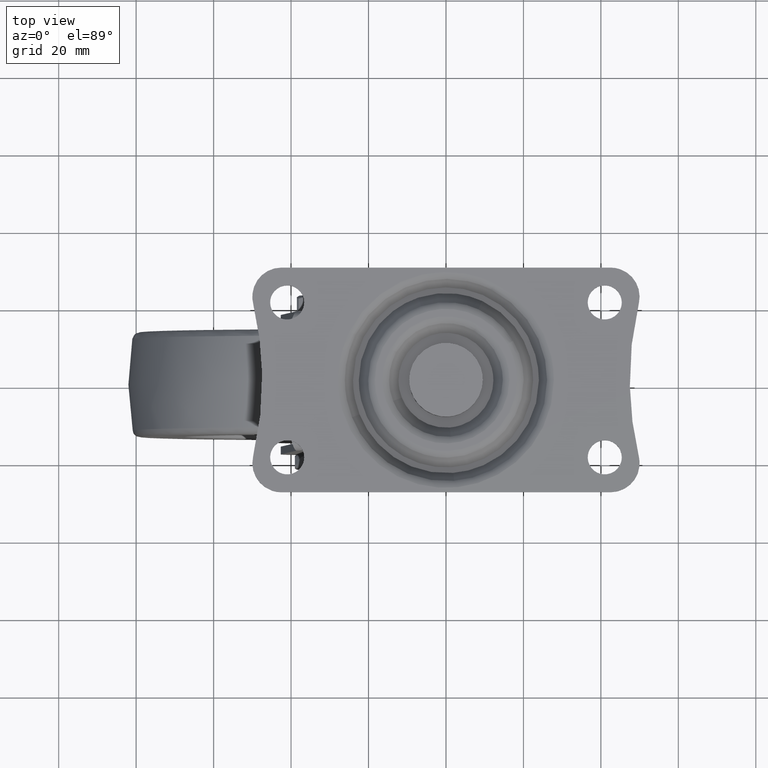
[diagram: clean part render]
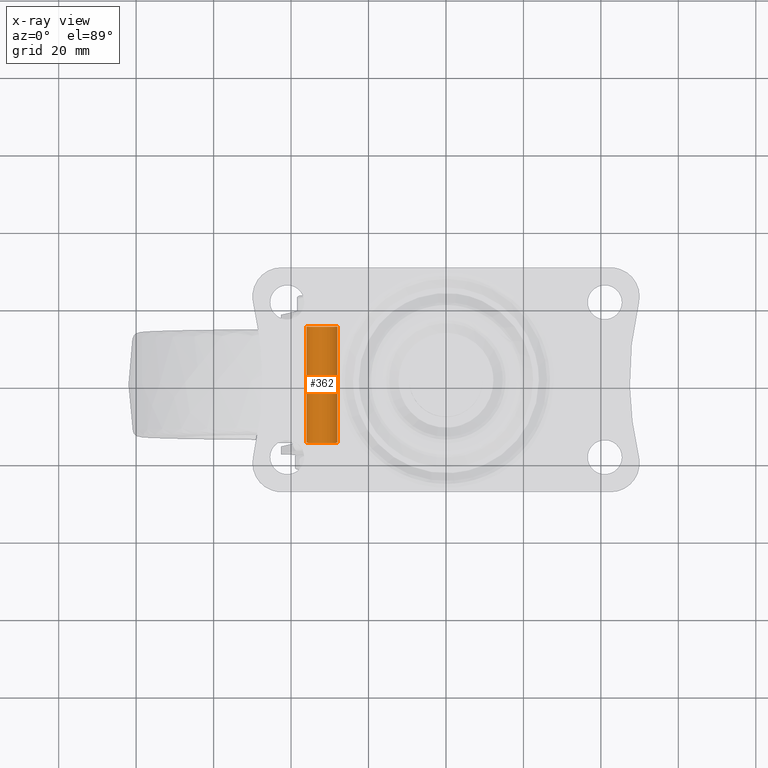
[diagram: x-ray — body ghosted, one internal face saturated and labeled with its STEP entity id]
A machine part, top view, then the same camera in x-ray: the body is ghosted and one INTERNAL B-rep face — a face not visible from any outside direction — is saturated and labeled: STEP entity #362.
In plain terms, the highlighted face is a freeform B-spline surface patch.
Its self-contained STEP definition (entity closure, byte-faithful):
#260=CARTESIAN_POINT('',(-28.027961894545228,-15.750000000000005,-69.527863061372955));
#261=CARTESIAN_POINT('',(-28.014449538205461,-15.750000000000007,-69.641541085448068));
#262=CARTESIAN_POINT('',(-28.007460806312420,-15.750000000000000,-69.755805841860564));
#263=CARTESIAN_POINT('',(-27.763266648172987,-15.750000000000009,-73.748345035548141));
#264=CARTESIAN_POINT('',(-31.755805841860560,-15.750000000000000,-73.992539193687577));
#265=CARTESIAN_POINT('',(-35.748345035548148,-15.750000000000009,-74.236733351827013));
#266=CARTESIAN_POINT('',(-35.992539193687577,-15.750000000000000,-70.244194158139436));
#267=CARTESIAN_POINT('',(-28.027961894545228,15.768749999999862,-69.527863061372955));
#268=CARTESIAN_POINT('',(-28.014449538205461,15.768749999999864,-69.641541085448068));
#269=CARTESIAN_POINT('',(-28.007460806312420,15.768749999999860,-69.755805841860564));
#270=CARTESIAN_POINT('',(-27.763266648172987,15.768749999999855,-73.748345035548141));
#271=CARTESIAN_POINT('',(-31.755805841860560,15.768749999999860,-73.992539193687577));
#272=CARTESIAN_POINT('',(-35.748345035548148,15.768749999999855,-74.236733351827013));
#273=CARTESIAN_POINT('',(-35.992539193687577,15.768749999999860,-70.244194158139436));
#281=(BOUNDED_SURFACE()B_SPLINE_SURFACE(2,1,((#260,#267),(#261,#268),(#262,#269),(#263,#270),(#264,#271),(#265,#272),(#266,#273)),.UNSPECIFIED.,.F.,.F.,.U.)B_SPLINE_SURFACE_WITH_KNOTS((3,2,2,3),(2,2),(0.0,0.265096679918789,6.892513677888497,13.519930675858211),(0.0,31.518749999999869),.UNSPECIFIED.)GEOMETRIC_REPRESENTATION_ITEM()RATIONAL_B_SPLINE_SURFACE(((0.977505800795127,0.977505800795127),(0.988284271247462,0.988284271247462),(1.0,1.0),(0.707106781186548,0.707106781186548),(1.0,1.0),(0.707106781186548,0.707106781186548),(1.0,1.0)))REPRESENTATION_ITEM('')SURFACE());
#282=CARTESIAN_POINT('',(-28.027961894596562,-15.0,-69.527863060941030));
#283=VERTEX_POINT('',#282);
#284=CARTESIAN_POINT('',(-32.0,-15.0,-74.000000000000128));
#285=VERTEX_POINT('',#284);
#286=CARTESIAN_POINT('',(-28.027961894596569,-15.000000000000002,-69.527863060941030));
#287=CARTESIAN_POINT('',(-27.999999999999890,-14.999999999999998,-69.763103520955866));
#288=CARTESIAN_POINT('',(-27.999999999999890,-15.0,-70.0));
#289=CARTESIAN_POINT('',(-27.999999999999883,-14.999999999999995,-74.000000000000128));
#290=CARTESIAN_POINT('',(-32.0,-15.0,-74.000000000000128));
#298=(BOUNDED_CURVE()B_SPLINE_CURVE(2,(#286,#287,#288,#289,#290),.UNSPECIFIED.,.F.,.U.)B_SPLINE_CURVE_WITH_KNOTS((3,2,3),(0.229562473478890,0.250000000000000,0.500000000000000),.UNSPECIFIED.)CURVE()GEOMETRIC_REPRESENTATION_ITEM()RATIONAL_B_SPLINE_CURVE((0.956026754115845,0.976055948290587,1.0,0.707106781186548,1.0))REPRESENTATION_ITEM(''));
#299=EDGE_CURVE('',#283,#285,#298,.T.);
#300=ORIENTED_EDGE('',*,*,#299,.F.);
#301=CARTESIAN_POINT('',(-28.027961894596562,14.999999999999860,-69.527863060941030));
#302=VERTEX_POINT('',#301);
#303=CARTESIAN_POINT('',(-28.027961894596562,-15.0,-69.527863060941030));
#304=CARTESIAN_POINT('',(-28.027961894596562,14.999999999999860,-69.527863060941030));
#305=QUASI_UNIFORM_CURVE('',1,(#303,#304),.UNSPECIFIED.,.F.,.U.);
#306=EDGE_CURVE('',#283,#302,#305,.T.);
#307=ORIENTED_EDGE('',*,*,#306,.T.);
#308=CARTESIAN_POINT('',(-32.0,14.999999999999860,-74.000000000000128));
#309=VERTEX_POINT('',#308);
#310=CARTESIAN_POINT('',(-28.027961894596562,14.999999999999863,-69.527863060941030));
#311=CARTESIAN_POINT('',(-27.999999999999886,14.999999999999865,-69.763103520955866));
#312=CARTESIAN_POINT('',(-27.999999999999890,14.999999999999860,-70.0));
#313=CARTESIAN_POINT('',(-27.999999999999883,14.999999999999869,-74.000000000000128));
#314=CARTESIAN_POINT('',(-32.0,14.999999999999860,-74.000000000000128));
#322=(BOUNDED_CURVE()B_SPLINE_CURVE(2,(#310,#311,#312,#313,#314),.UNSPECIFIED.,.F.,.U.)B_SPLINE_CURVE_WITH_KNOTS((3,2,3),(0.229562473478890,0.250000000000000,0.500000000000000),.UNSPECIFIED.)CURVE()GEOMETRIC_REPRESENTATION_ITEM()RATIONAL_B_SPLINE_CURVE((0.956026754115845,0.976055948290587,1.0,0.707106781186548,1.0))REPRESENTATION_ITEM(''));
#323=EDGE_CURVE('',#302,#309,#322,.T.);
#324=ORIENTED_EDGE('',*,*,#323,.T.);
#325=CARTESIAN_POINT('',(-35.992539193682873,14.999999999999860,-70.244194158216487));
#326=VERTEX_POINT('',#325);
#327=CARTESIAN_POINT('',(-32.0,14.999999999999860,-74.000000000000128));
#328=CARTESIAN_POINT('',(-35.762824267477363,14.999999999999860,-74.000000000000128));
#329=CARTESIAN_POINT('',(-35.992539193682873,14.999999999999865,-70.244194158216487));
#337=(BOUNDED_CURVE()B_SPLINE_CURVE(2,(#327,#328,#329),.UNSPECIFIED.,.F.,.U.)B_SPLINE_CURVE_WITH_KNOTS((3,3),(0.500000000000000,0.739332962235308),.UNSPECIFIED.)CURVE()GEOMETRIC_REPRESENTATION_ITEM()RATIONAL_B_SPLINE_CURVE((1.0,0.719603993290969,0.976072041658927))REPRESENTATION_ITEM(''));
#338=EDGE_CURVE('',#309,#326,#337,.T.);
#339=ORIENTED_EDGE('',*,*,#338,.T.);
#340=CARTESIAN_POINT('',(-35.992539193682873,-15.0,-70.244194158216487));
#341=VERTEX_POINT('',#340);
#342=CARTESIAN_POINT('',(-35.992539193682873,-15.0,-70.244194158216487));
#343=CARTESIAN_POINT('',(-35.992539193682873,14.999999999999860,-70.244194158216487));
#344=QUASI_UNIFORM_CURVE('',1,(#342,#343),.UNSPECIFIED.,.F.,.U.);
#345=EDGE_CURVE('',#341,#326,#344,.T.);
#346=ORIENTED_EDGE('',*,*,#345,.F.);
#347=CARTESIAN_POINT('',(-32.0,-15.0,-74.000000000000128));
#348=CARTESIAN_POINT('',(-35.762824267477363,-14.999999999999998,-74.000000000000128));
#349=CARTESIAN_POINT('',(-35.992539193682873,-14.999999999999998,-70.244194158216487));
#357=(BOUNDED_CURVE()B_SPLINE_CURVE(2,(#347,#348,#349),.UNSPECIFIED.,.F.,.U.)B_SPLINE_CURVE_WITH_KNOTS((3,3),(0.500000000000000,0.739332962235308),.UNSPECIFIED.)CURVE()GEOMETRIC_REPRESENTATION_ITEM()RATIONAL_B_SPLINE_CURVE((1.0,0.719603993290969,0.976072041658927))REPRESENTATION_ITEM(''));
#358=EDGE_CURVE('',#285,#341,#357,.T.);
#359=ORIENTED_EDGE('',*,*,#358,.F.);
#360=EDGE_LOOP('',(#300,#307,#324,#339,#346,#359));
#361=FACE_OUTER_BOUND('',#360,.T.);
#362=ADVANCED_FACE('',(#361),#281,.F.);